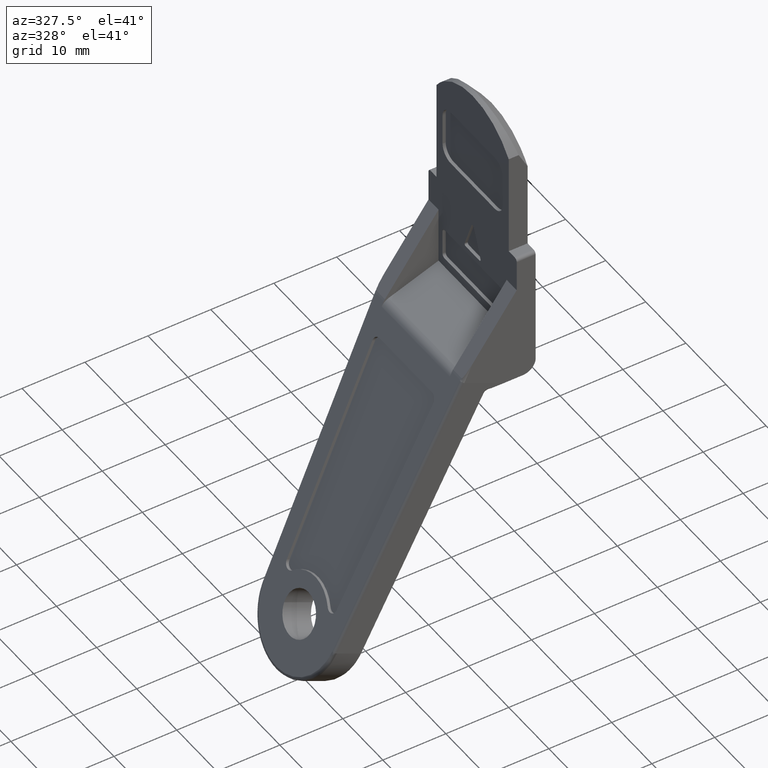
[diagram: clean part render]
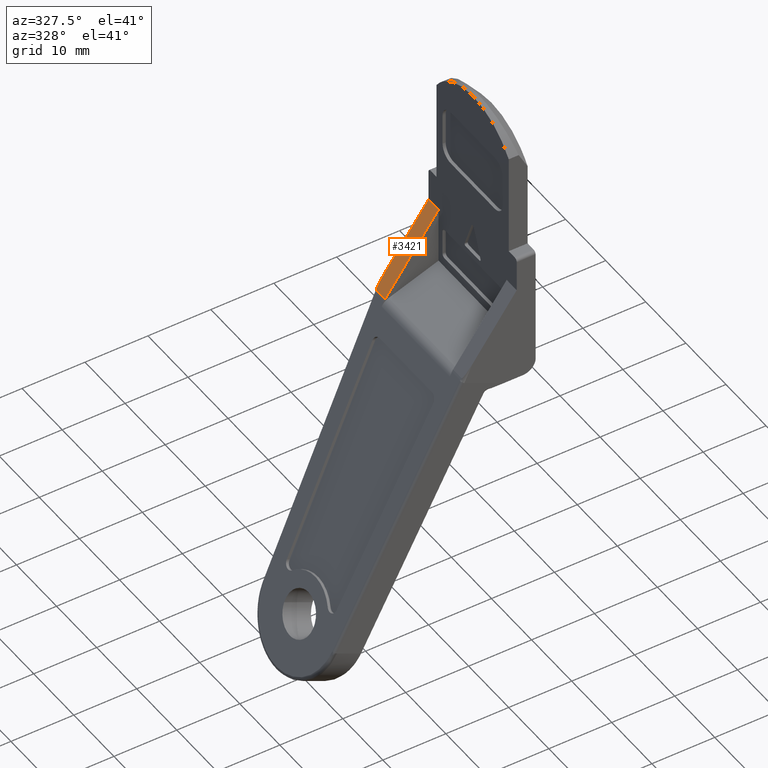
[diagram: same view with one face highlighted and labeled with its STEP entity id]
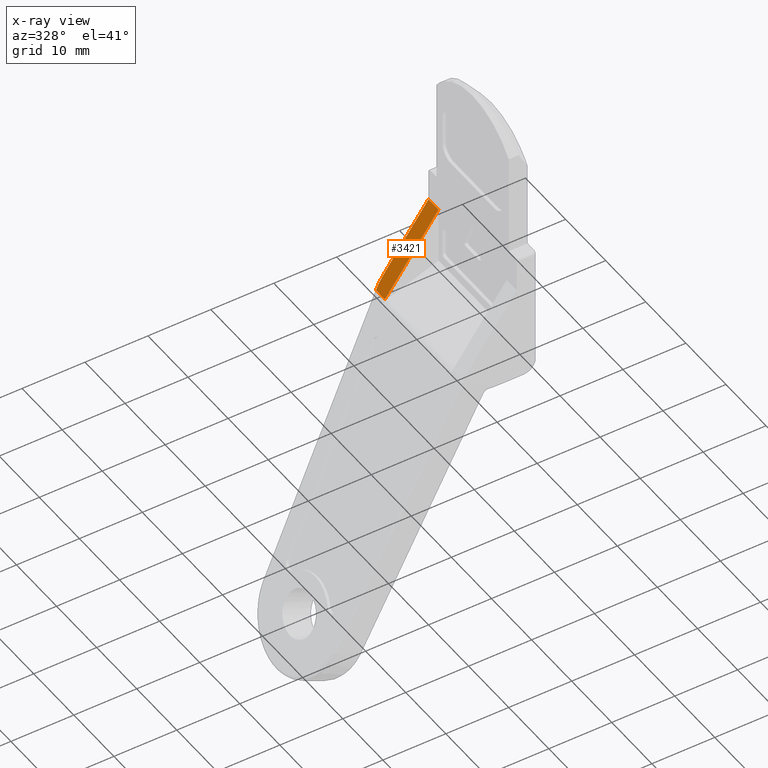
[diagram: x-ray of the same camera — body ghosted, the highlighted face saturated]
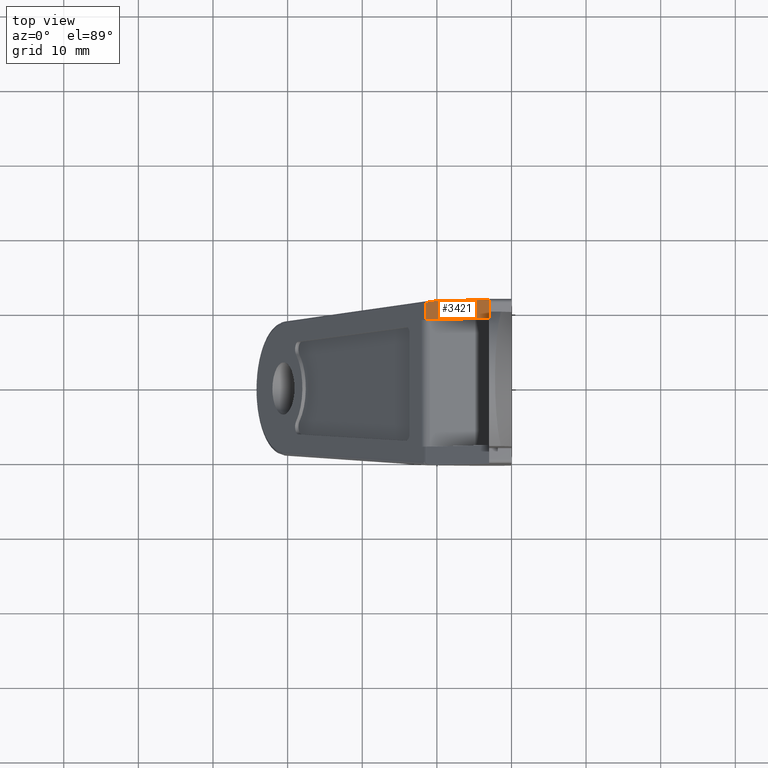
[diagram: same view with one face highlighted and labeled with its STEP entity id]
A machine part, auxiliary view. The second image highlights one B-rep face of the part: STEP entity #3421.
The next image is the same camera in x-ray: the body ghosted, the highlighted face saturated — about 0% of this face is hidden behind the body in this view.
A second angle (top view) of the same face is appended — the face is thin or edge-on in the first view.
In plain terms, the highlighted face is a freeform B-spline surface patch.
Its self-contained STEP definition (entity closure, byte-faithful):
#497=CARTESIAN_POINT('',(-10.042328964206421,11.0,-25.320571920595800));
#498=VERTEX_POINT('',#497);
#499=CARTESIAN_POINT('',(-11.523885999999900,10.680580890717760,-27.394536000000201));
#500=VERTEX_POINT('',#499);
#501=CARTESIAN_POINT('',(-10.042328964206421,11.0,-25.320571920595800));
#502=CARTESIAN_POINT('',(-11.130779357838454,10.999999975520948,-26.844243952160529));
#503=CARTESIAN_POINT('',(-11.523885999999900,10.680580890717760,-27.394536000000201));
#511=(BOUNDED_CURVE()B_SPLINE_CURVE(2,(#501,#502,#503),.UNSPECIFIED.,.F.,.U.)CURVE()GEOMETRIC_REPRESENTATION_ITEM()QUASI_UNIFORM_CURVE()RATIONAL_B_SPLINE_CURVE((1.0,0.824973286863100,1.0))REPRESENTATION_ITEM(''));
#512=EDGE_CURVE('',#498,#500,#511,.T.);
#3196=CARTESIAN_POINT('',(-3.0,8.500000000000000,-15.462337000000000));
#3197=VERTEX_POINT('',#3196);
#3203=CARTESIAN_POINT('',(-11.523885999999900,8.500000000000000,-27.394536000000201));
#3204=VERTEX_POINT('',#3203);
#3205=CARTESIAN_POINT('',(-11.523885999999900,8.500000000000000,-27.394536000000201));
#3206=CARTESIAN_POINT('',(-3.0,8.500000000000000,-15.462337000000000));
#3207=QUASI_UNIFORM_CURVE('',1,(#3205,#3206),.UNSPECIFIED.,.F.,.U.);
#3208=EDGE_CURVE('',#3204,#3197,#3207,.T.);
#3395=CARTESIAN_POINT('',(-2.574231701225827,8.375125004845485,-14.866323389674260));
#3396=CARTESIAN_POINT('',(-11.949653689098220,8.375125004845485,-27.990548756868570));
#3397=CARTESIAN_POINT('',(-2.574231701225827,11.124875062209741,-14.866323389674260));
#3398=CARTESIAN_POINT('',(-11.949653689098220,11.124875062209741,-27.990548756868570));
#3399=B_SPLINE_SURFACE_WITH_KNOTS('',1,1,((#3395,#3397),(#3396,#3398)),.UNSPECIFIED.,.F.,.F.,.U.,(2,2),(2,2),(0.0,16.128974826057231),(0.0,2.749750057364254),.UNSPECIFIED.);
#3400=CARTESIAN_POINT('',(-3.0,11.0,-15.462337000000000));
#3401=VERTEX_POINT('',#3400);
#3402=CARTESIAN_POINT('',(-3.0,11.0,-15.462337000000000));
#3403=CARTESIAN_POINT('',(-10.042328964206421,11.0,-25.320571920595800));
#3404=QUASI_UNIFORM_CURVE('',1,(#3402,#3403),.UNSPECIFIED.,.F.,.U.);
#3405=EDGE_CURVE('',#3401,#498,#3404,.T.);
#3406=ORIENTED_EDGE('',*,*,#3405,.T.);
#3407=ORIENTED_EDGE('',*,*,#512,.T.);
#3408=CARTESIAN_POINT('',(-11.523885999999900,8.500000000000000,-27.394536000000201));
#3409=CARTESIAN_POINT('',(-11.523885999999900,10.680580890717760,-27.394536000000201));
#3410=QUASI_UNIFORM_CURVE('',1,(#3408,#3409),.UNSPECIFIED.,.F.,.U.);
#3411=EDGE_CURVE('',#3204,#500,#3410,.T.);
#3412=ORIENTED_EDGE('',*,*,#3411,.F.);
#3413=ORIENTED_EDGE('',*,*,#3208,.T.);
#3414=CARTESIAN_POINT('',(-3.0,8.500000000000000,-15.462337000000000));
#3415=CARTESIAN_POINT('',(-3.0,11.0,-15.462337000000000));
#3416=QUASI_UNIFORM_CURVE('',1,(#3414,#3415),.UNSPECIFIED.,.F.,.U.);
#3417=EDGE_CURVE('',#3197,#3401,#3416,.T.);
#3418=ORIENTED_EDGE('',*,*,#3417,.T.);
#3419=EDGE_LOOP('',(#3406,#3407,#3412,#3413,#3418));
#3420=FACE_OUTER_BOUND('',#3419,.T.);
#3421=ADVANCED_FACE('',(#3420),#3399,.F.);